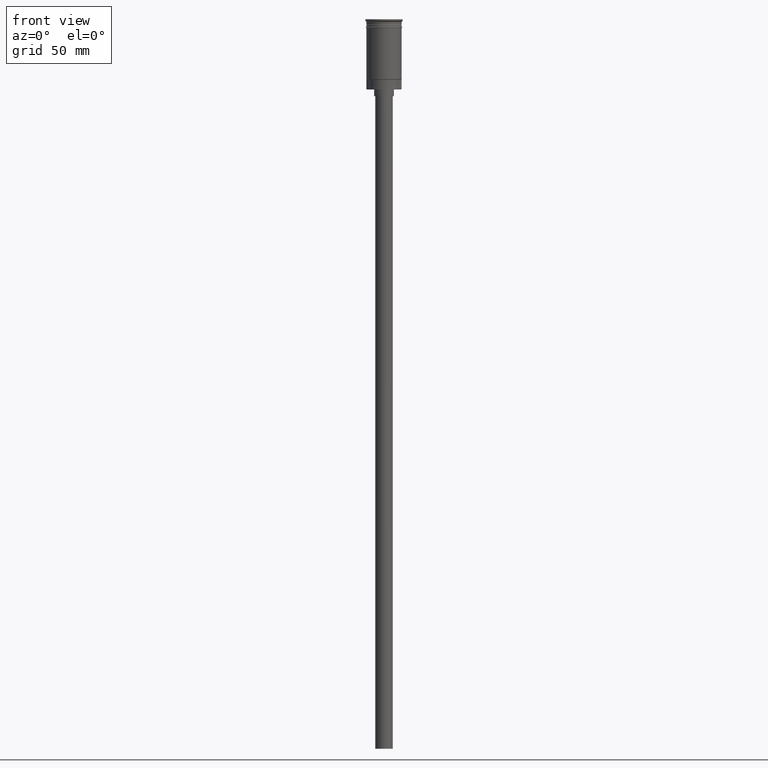
[diagram: clean part render]
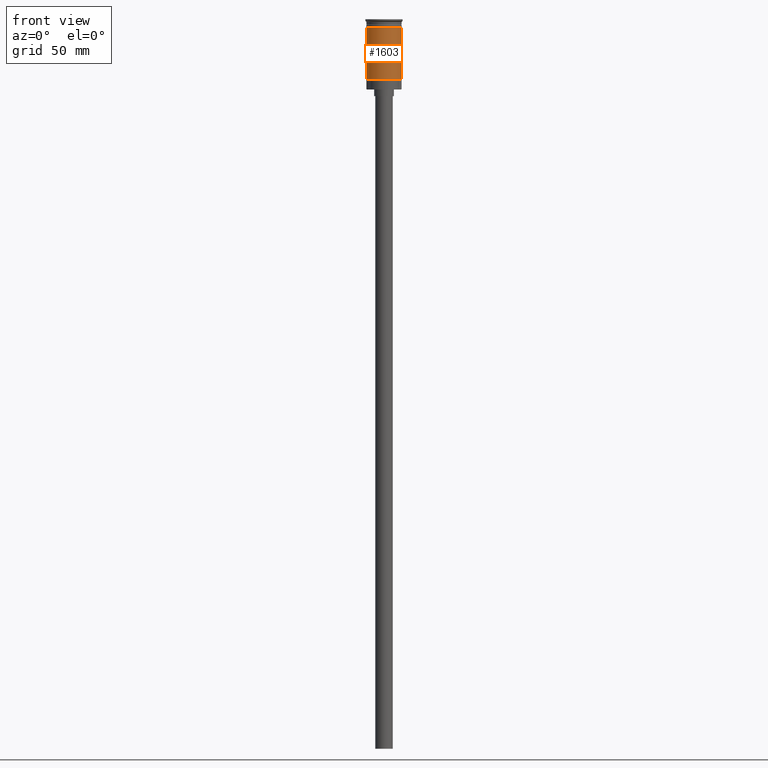
[diagram: same view with one face highlighted and labeled with its STEP entity id]
A machine part, front view. The second image highlights one B-rep face of the part: STEP entity #1603.
In plain terms, the highlighted cylindrical surface (edge-blend (fillet) strip) has radius 8 mm, axis along (-0, -0, 1).
Its self-contained STEP definition (entity closure, byte-faithful):
#8 = LINE ( 'NONE', #280, #126 ) ;
#62 = FACE_OUTER_BOUND ( 'NONE', #1253, .T. ) ;
#126 = VECTOR ( 'NONE', #1127, 1000.000000000000000 ) ;
#153 = CARTESIAN_POINT ( 'NONE',  ( 7.999999999999996447, 9.797174393178821713E-16, -27.30000000000006466 ) ) ;
#280 = CARTESIAN_POINT ( 'NONE',  ( -7.999999999999996447, 9.797174393178821713E-16, 0.000000000000000000 ) ) ;
#312 = DIRECTION ( 'NONE',  ( -0.000000000000000000, -0.000000000000000000, 1.000000000000000000 ) ) ;
#334 = ORIENTED_EDGE ( 'NONE', *, *, #1428, .T. ) ;
#356 = CIRCLE ( 'NONE', #590, 7.999999999999996447 ) ;
#392 = VERTEX_POINT ( 'NONE', #425 ) ;
#399 = AXIS2_PLACEMENT_3D ( 'NONE', #1342, #989, #1591 ) ;
#425 = CARTESIAN_POINT ( 'NONE',  ( 8.000000000000000000, 0.000000000000000000, -3.999999999999997335 ) ) ;
#446 = CARTESIAN_POINT ( 'NONE',  ( 7.999999999999996447, 0.000000000000000000, 0.000000000000000000 ) ) ;
#448 = DIRECTION ( 'NONE',  ( -0.000000000000000000, -0.000000000000000000, 1.000000000000000000 ) ) ;
#590 = AXIS2_PLACEMENT_3D ( 'NONE', #805, #1524, #682 ) ;
#602 = VERTEX_POINT ( 'NONE', #1337 ) ;
#614 = CARTESIAN_POINT ( 'NONE',  ( -8.000000000000000000, 9.797174393178825657E-16, -3.999999999999997335 ) ) ;
#645 = EDGE_CURVE ( 'NONE', #602, #1317, #8, .T. ) ;
#676 = CYLINDRICAL_SURFACE ( 'NONE', #686, 7.999999999999996447 ) ;
#682 = DIRECTION ( 'NONE',  ( -1.000000000000000000, 0.000000000000000000, 0.000000000000000000 ) ) ;
#686 = AXIS2_PLACEMENT_3D ( 'NONE', #944, #448, #918 ) ;
#805 = CARTESIAN_POINT ( 'NONE',  ( 0.000000000000000000, 0.000000000000000000, -27.30000000000006466 ) ) ;
#918 = DIRECTION ( 'NONE',  ( 1.000000000000000000, 0.000000000000000000, 0.000000000000000000 ) ) ;
#933 = LINE ( 'NONE', #446, #1415 ) ;
#944 = CARTESIAN_POINT ( 'NONE',  ( 0.000000000000000000, 0.000000000000000000, 0.000000000000000000 ) ) ;
#976 = EDGE_CURVE ( 'NONE', #1317, #392, #1266, .T. ) ;
#989 = DIRECTION ( 'NONE',  ( -0.000000000000000000, -0.000000000000000000, 1.000000000000000000 ) ) ;
#990 = ORIENTED_EDGE ( 'NONE', *, *, #645, .F. ) ;
#994 = ORIENTED_EDGE ( 'NONE', *, *, #1227, .T. ) ;
#1071 = VERTEX_POINT ( 'NONE', #153 ) ;
#1127 = DIRECTION ( 'NONE',  ( -0.000000000000000000, -0.000000000000000000, 1.000000000000000000 ) ) ;
#1227 = EDGE_CURVE ( 'NONE', #1071, #392, #933, .T. ) ;
#1253 = EDGE_LOOP ( 'NONE', ( #990, #334, #994, #1363 ) ) ;
#1266 = CIRCLE ( 'NONE', #399, 8.000000000000000000 ) ;
#1317 = VERTEX_POINT ( 'NONE', #614 ) ;
#1337 = CARTESIAN_POINT ( 'NONE',  ( -7.999999999999992895, 0.000000000000000000, -27.30000000000006466 ) ) ;
#1342 = CARTESIAN_POINT ( 'NONE',  ( 0.000000000000000000, 0.000000000000000000, -3.999999999999997335 ) ) ;
#1363 = ORIENTED_EDGE ( 'NONE', *, *, #976, .F. ) ;
#1415 = VECTOR ( 'NONE', #312, 1000.000000000000000 ) ;
#1428 = EDGE_CURVE ( 'NONE', #602, #1071, #356, .T. ) ;
#1524 = DIRECTION ( 'NONE',  ( -0.000000000000000000, -0.000000000000000000, 1.000000000000000000 ) ) ;
#1591 = DIRECTION ( 'NONE',  ( 1.000000000000000000, 0.000000000000000000, 0.000000000000000000 ) ) ;
#1603 = ADVANCED_FACE ( 'NONE', ( #62 ), #676, .T. ) ;